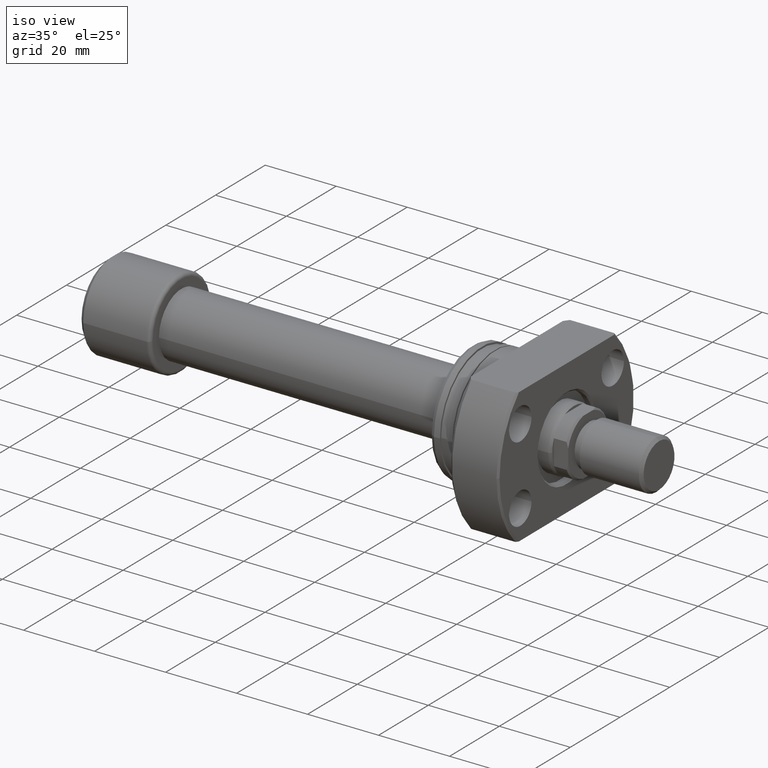
[diagram: clean part render]
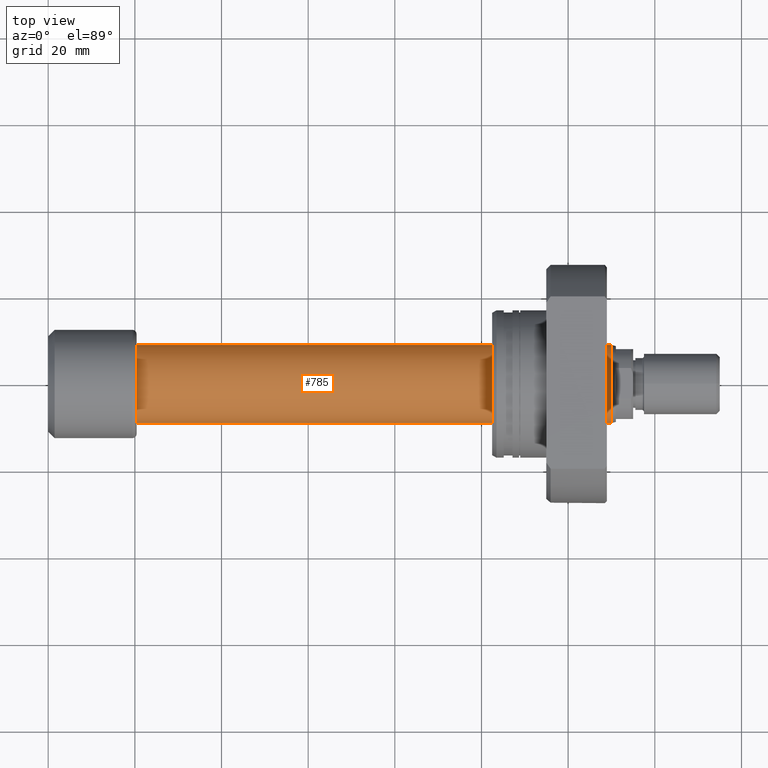
[diagram: tour spotlight — one face highlighted and labeled with its STEP entity id]
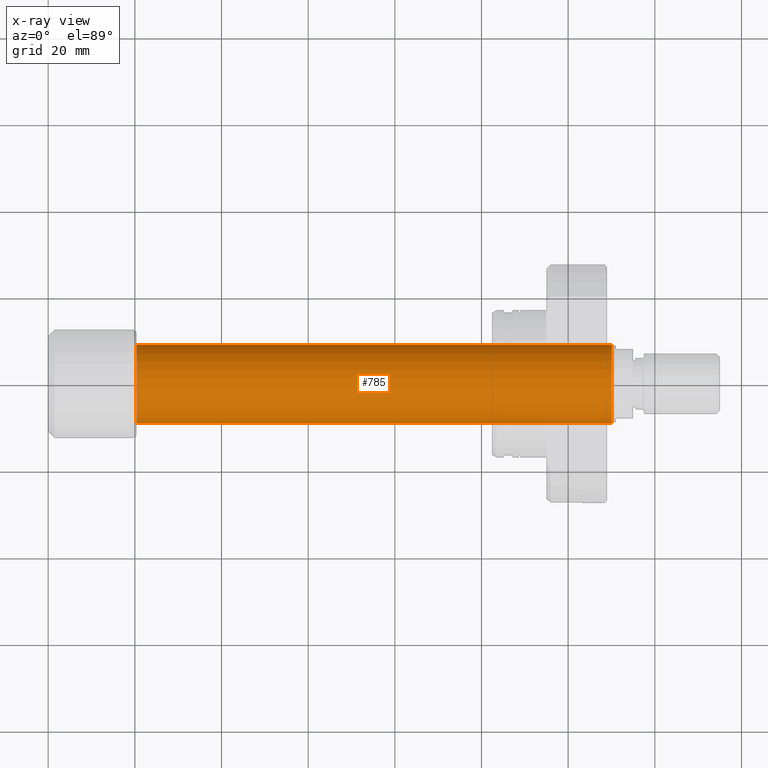
[diagram: x-ray of the same camera — body ghosted, this tour face saturated]
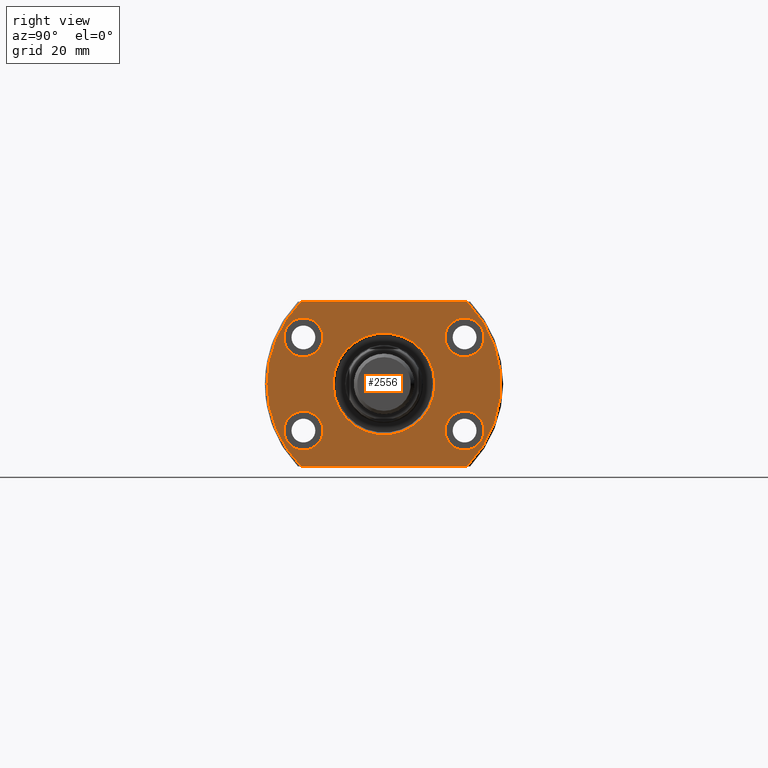
[diagram: tour spotlight — one face highlighted and labeled with its STEP entity id]
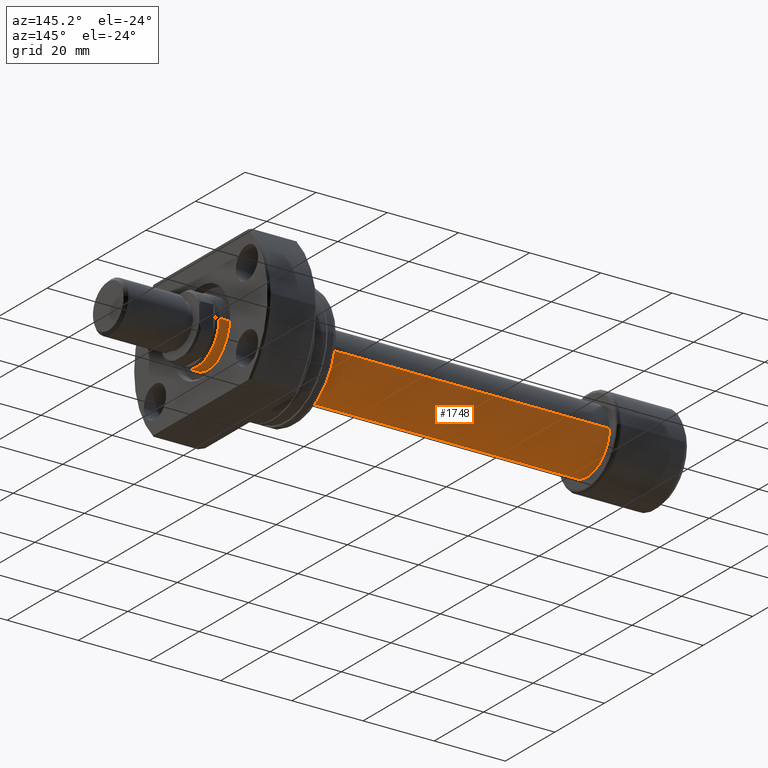
[diagram: tour spotlight — one face highlighted and labeled with its STEP entity id]
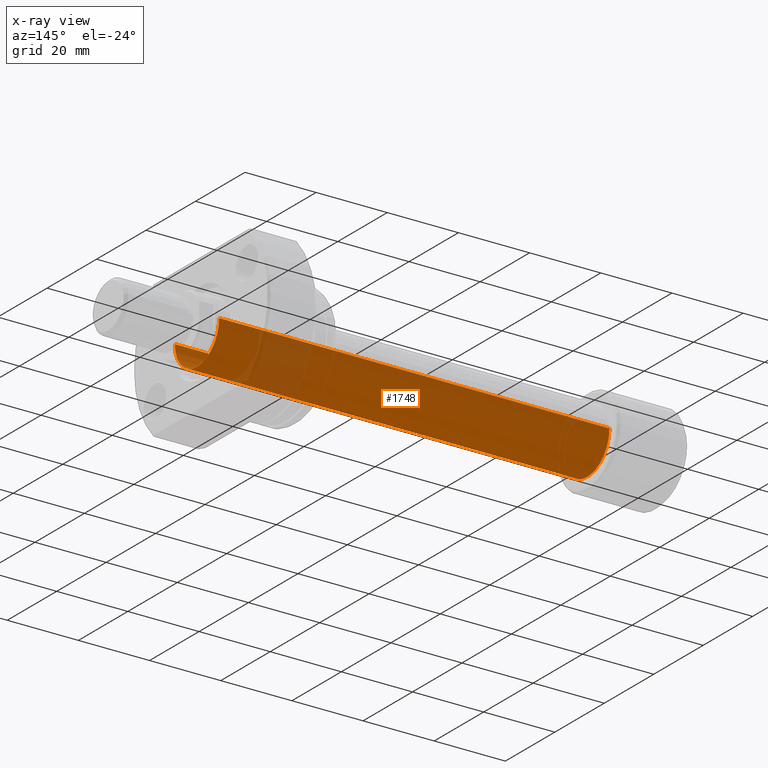
[diagram: x-ray of the same camera — body ghosted, this tour face saturated]
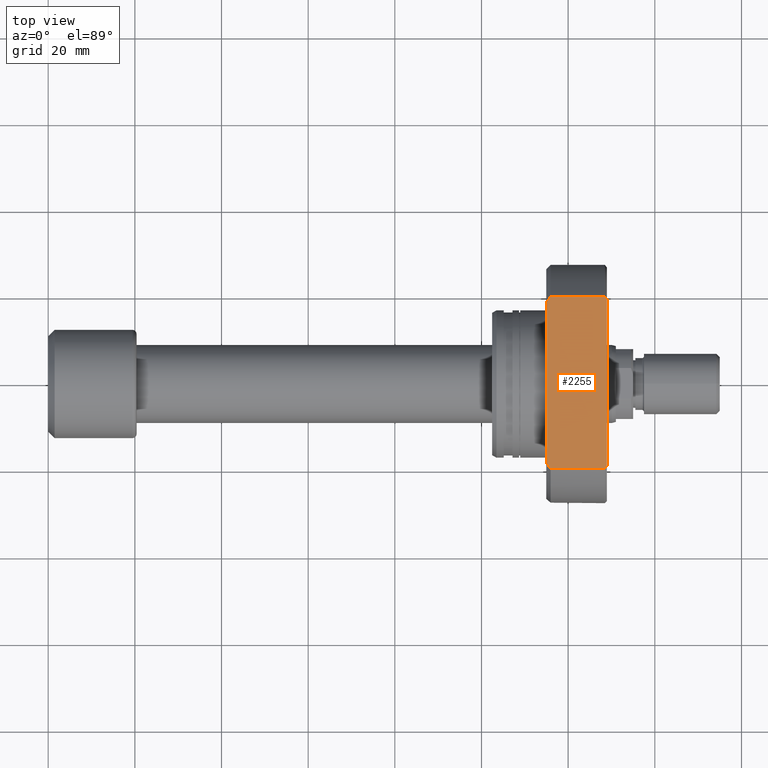
[diagram: tour spotlight — one face highlighted and labeled with its STEP entity id]
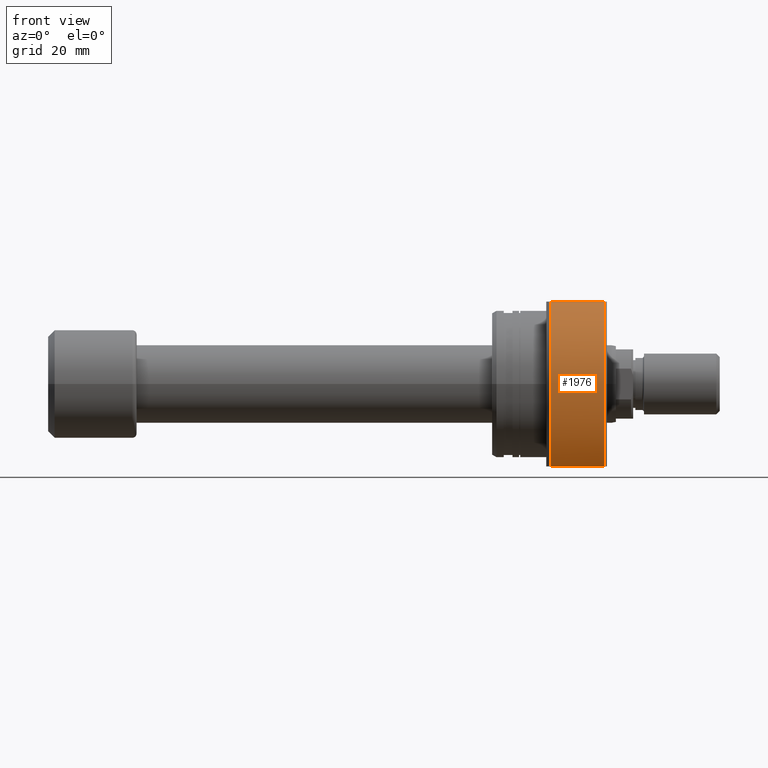
[diagram: tour spotlight — one face highlighted and labeled with its STEP entity id]
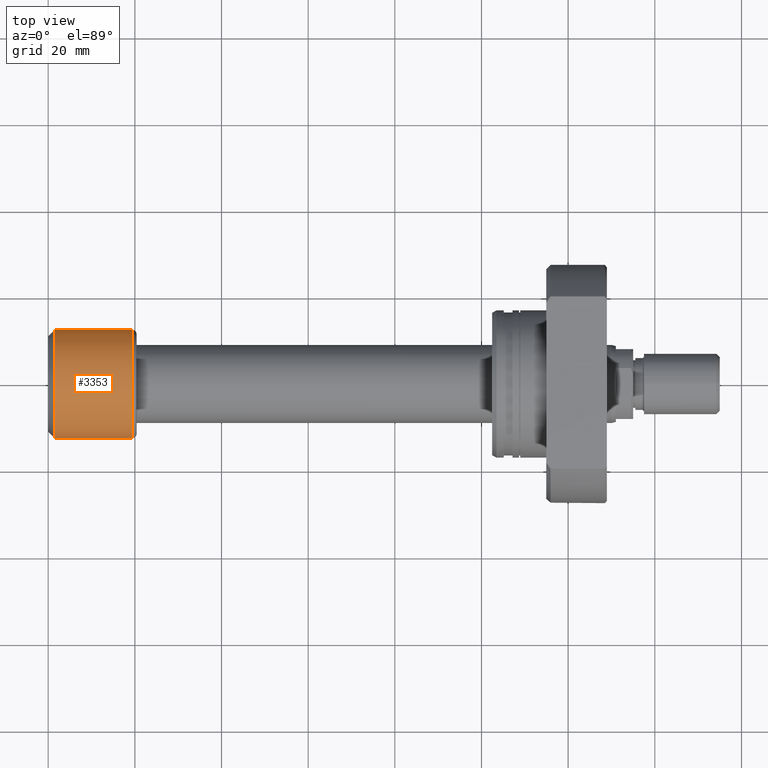
[diagram: tour spotlight — one face highlighted and labeled with its STEP entity id]
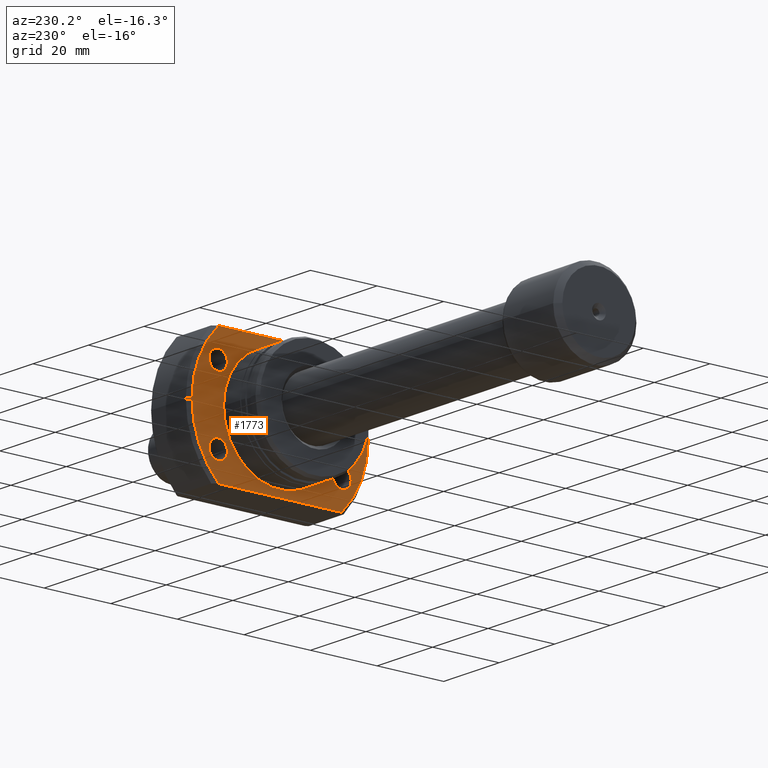
[diagram: tour spotlight — one face highlighted and labeled with its STEP entity id]
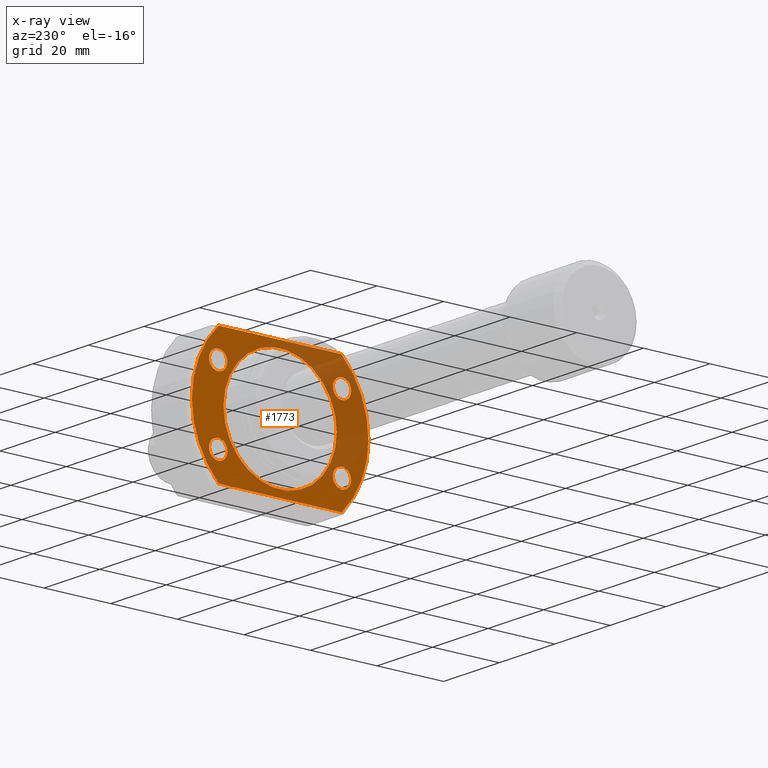
[diagram: x-ray of the same camera — body ghosted, this tour face saturated]
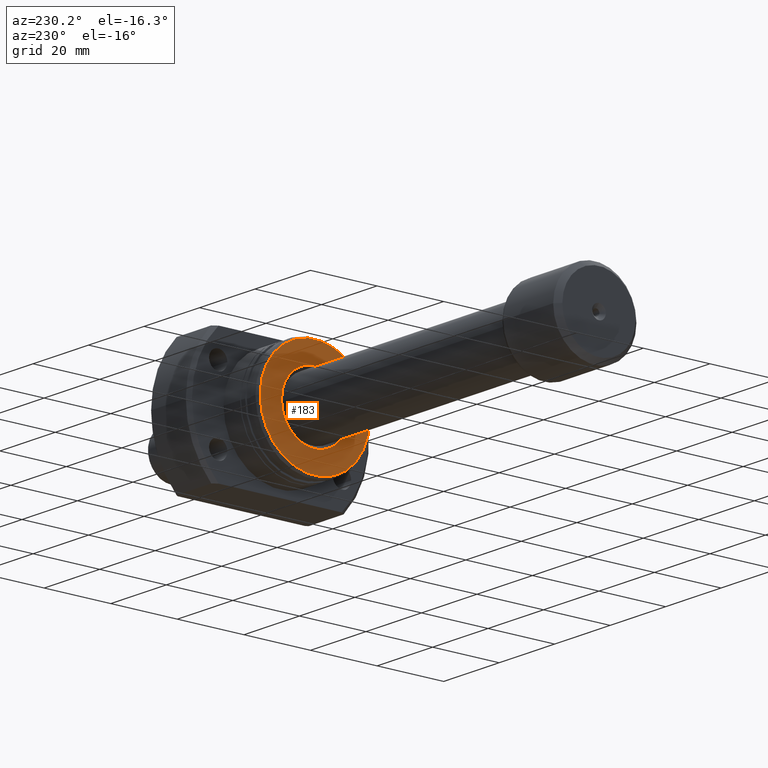
[diagram: tour spotlight — one face highlighted and labeled with its STEP entity id]
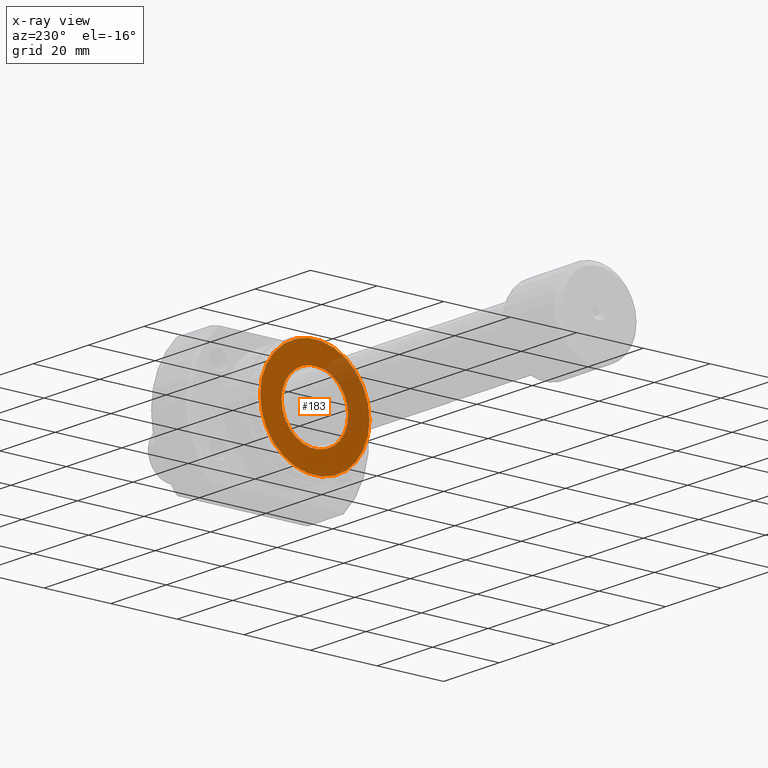
[diagram: x-ray of the same camera — body ghosted, this tour face saturated]
A machine part: a face-by-face anatomy tour. The part has 117 B-rep faces; the first image is the clean iso view, then the 8 largest visible faces are spotlighted one at a time (largest first), each with its STEP entity span.

Face 1 — top view, entity #785. An x-ray twin of the same camera follows (body ghosted, this face saturated) — the face is partly hidden behind the body. In plain terms, the highlighted cylindrical surface (partial cylindrical patch) has radius 9 mm, axis along (-1, -0, -0).
Definition (entity closure, byte-faithful):
#20 = DIRECTION ( 'NONE',  ( -1.000000000000000000, -1.069542322069065801E-17, -0.000000000000000000 ) ) ;
#26 = VERTEX_POINT ( 'NONE', #181 ) ;
#181 = CARTESIAN_POINT ( 'NONE',  ( 130.0667575123237611, 9.000000000000195399, 1.102182119232641774E-15 ) ) ;
#251 = EDGE_CURVE ( 'NONE', #26, #2731, #1156, .T. ) ;
#333 = CIRCLE ( 'NONE', #1998, 9.000000000000000000 ) ;
#438 = EDGE_CURVE ( 'NONE', #3619, #2731, #333, .T. ) ;
#513 = VECTOR ( 'NONE', #584, 1000.000000000000000 ) ;
#579 = CARTESIAN_POINT ( 'NONE',  ( 0.000000000000000000, 0.000000000000000000, 0.000000000000000000 ) ) ;
#584 = DIRECTION ( 'NONE',  ( -1.000000000000000000, -1.069542322069065801E-17, -0.000000000000000000 ) ) ;
#596 = CARTESIAN_POINT ( 'NONE',  ( 130.0667575123237611, -9.000000000000193623, 0.000000000000000000 ) ) ;
#623 = VECTOR ( 'NONE', #20, 1000.000000000000000 ) ;
#744 = AXIS2_PLACEMENT_3D ( 'NONE', #2143, #796, #766 ) ;
#766 = DIRECTION ( 'NONE',  ( 0.000000000000000000, -1.000000000000000000, 0.000000000000000000 ) ) ;
#785 = ADVANCED_FACE ( 'NONE', ( #1207 ), #2349, .T. ) ;
#788 = VERTEX_POINT ( 'NONE', #596 ) ;
#796 = DIRECTION ( 'NONE',  ( -1.000000000000000000, -1.069542322069065801E-17, -0.000000000000000000 ) ) ;
#1156 = LINE ( 'NONE', #1194, #513 ) ;
#1194 = CARTESIAN_POINT ( 'NONE',  ( -9.625880898621698056E-17, 9.000000000000097700, 1.102182119232629941E-15 ) ) ;
#1207 = FACE_OUTER_BOUND ( 'NONE', #3373, .T. ) ;
#1264 = CARTESIAN_POINT ( 'NONE',  ( 20.39999999999999503, 9.000000000000000000, 1.102182119232623630E-15 ) ) ;
#1286 = AXIS2_PLACEMENT_3D ( 'NONE', #579, #1432, #2292 ) ;
#1431 = ORIENTED_EDGE ( 'NONE', *, *, #438, .F. ) ;
#1432 = DIRECTION ( 'NONE',  ( -1.000000000000000000, -1.069542322069065801E-17, -0.000000000000000000 ) ) ;
#1643 = ORIENTED_EDGE ( 'NONE', *, *, #1729, .F. ) ;
#1729 = EDGE_CURVE ( 'NONE', #788, #3619, #2357, .T. ) ;
#1873 = CARTESIAN_POINT ( 'NONE',  ( 20.39999999999999503, 2.181866337020893623E-16, 0.000000000000000000 ) ) ;
#1998 = AXIS2_PLACEMENT_3D ( 'NONE', #1873, #2684, #3013 ) ;
#2143 = CARTESIAN_POINT ( 'NONE',  ( 130.0667575123237611, 1.391119018537248741E-15, 0.000000000000000000 ) ) ;
#2165 = CARTESIAN_POINT ( 'NONE',  ( 20.39999999999999503, -9.000000000000000000, 0.000000000000000000 ) ) ;
#2189 = ORIENTED_EDGE ( 'NONE', *, *, #3396, .T. ) ;
#2292 = DIRECTION ( 'NONE',  ( 1.069542322069065955E-17, -1.000000000000000000, 0.000000000000000000 ) ) ;
#2349 = CYLINDRICAL_SURFACE ( 'NONE', #1286, 9.000000000000097700 ) ;
#2357 = LINE ( 'NONE', #2911, #623 ) ;
#2684 = DIRECTION ( 'NONE',  ( -1.000000000000000000, -1.069542322069065801E-17, -0.000000000000000000 ) ) ;
#2731 = VERTEX_POINT ( 'NONE', #1264 ) ;
#2911 = CARTESIAN_POINT ( 'NONE',  ( 9.625880898621698056E-17, -9.000000000000097700, 0.000000000000000000 ) ) ;
#3013 = DIRECTION ( 'NONE',  ( 0.000000000000000000, -1.000000000000000000, 0.000000000000000000 ) ) ;
#3182 = ORIENTED_EDGE ( 'NONE', *, *, #251, .T. ) ;
#3370 = CIRCLE ( 'NONE', #744, 9.000000000000195399 ) ;
#3373 = EDGE_LOOP ( 'NONE', ( #2189, #3182, #1431, #1643 ) ) ;
#3396 = EDGE_CURVE ( 'NONE', #788, #26, #3370, .T. ) ;
#3619 = VERTEX_POINT ( 'NONE', #2165 ) ;

Face 2 — right view, entity #2556. In plain terms, the highlighted planar face has unit normal (-1, -0, 0).
Definition (entity closure, byte-faithful):
#27 = AXIS2_PLACEMENT_3D ( 'NONE', #2657, #2863, #1995 ) ;
#31 = AXIS2_PLACEMENT_3D ( 'NONE', #1105, #219, #1408 ) ;
#39 = CIRCLE ( 'NONE', #3143, 4.500000000000000888 ) ;
#92 = CARTESIAN_POINT ( 'NONE',  ( 26.50000000000000355, 19.18332609325086580, -19.00000000000001066 ) ) ;
#107 = CARTESIAN_POINT ( 'NONE',  ( 26.49999999999946354, -18.60000000000076881, -10.75000000000000000 ) ) ;
#119 = EDGE_CURVE ( 'NONE', #1030, #3188, #1407, .T. ) ;
#150 = EDGE_LOOP ( 'NONE', ( #2252, #3341 ) ) ;
#154 = CARTESIAN_POINT ( 'NONE',  ( 26.50000000000000355, -11.75000000000071054, 1.438959988998140752E-15 ) ) ;
#164 = VECTOR ( 'NONE', #2263, 1000.000000000000000 ) ;
#179 = DIRECTION ( 'NONE',  ( 0.000000000000000000, 1.000000000000000000, 0.000000000000000000 ) ) ;
#219 = DIRECTION ( 'NONE',  ( 1.000000000000000000, -2.883293662278287419E-14, -3.155443620884046521E-30 ) ) ;
#227 = ORIENTED_EDGE ( 'NONE', *, *, #2140, .F. ) ;
#234 = CARTESIAN_POINT ( 'NONE',  ( 26.50000000000000355, 2.449293598294708386E-16, 0.000000000000000000 ) ) ;
#357 = EDGE_LOOP ( 'NONE', ( #965, #1953 ) ) ;
#419 = ORIENTED_EDGE ( 'NONE', *, *, #1961, .T. ) ;
#420 = CARTESIAN_POINT ( 'NONE',  ( 26.50000000000000355, 2.449293598294708386E-16, 0.000000000000000000 ) ) ;
#446 = VECTOR ( 'NONE', #800, 1000.000000000000000 ) ;
#495 = CARTESIAN_POINT ( 'NONE',  ( 26.49999999999959499, -14.10000000000076881, 10.75000000000000000 ) ) ;
#518 = DIRECTION ( 'NONE',  ( 1.000000000000000000, -2.883293662278287419E-14, -3.155443620884046521E-30 ) ) ;
#526 = ORIENTED_EDGE ( 'NONE', *, *, #2813, .T. ) ;
#555 = DIRECTION ( 'NONE',  ( 2.852656382717415620E-14, 1.000000000000000000, 0.000000000000000000 ) ) ;
#576 = VERTEX_POINT ( 'NONE', #1671 ) ;
#641 = FACE_BOUND ( 'NONE', #150, .T. ) ;
#684 = DIRECTION ( 'NONE',  ( -1.000000000000000000, -9.242617352055502386E-18, 0.000000000000000000 ) ) ;
#729 = CARTESIAN_POINT ( 'NONE',  ( 26.50000000000000355, -19.18332609325086224, 19.00000000000000711 ) ) ;
#730 = EDGE_CURVE ( 'NONE', #1334, #2320, #1889, .T. ) ;
#780 = DIRECTION ( 'NONE',  ( 2.852656382717415620E-14, 1.000000000000000000, 0.000000000000000000 ) ) ;
#800 = DIRECTION ( 'NONE',  ( -0.000000000000000000, 1.000000000000000000, 0.000000000000000000 ) ) ;
#803 = CIRCLE ( 'NONE', #3658, 4.500000000000000888 ) ;
#807 = CARTESIAN_POINT ( 'NONE',  ( 26.50000000000000355, -19.18332609325086580, -19.00000000000001066 ) ) ;
#859 = EDGE_CURVE ( 'NONE', #576, #1982, #2910, .T. ) ;
#877 = CARTESIAN_POINT ( 'NONE',  ( 26.50000000000000355, -27.00000000000000000, 0.000000000000000000 ) ) ;
#953 = CARTESIAN_POINT ( 'NONE',  ( 26.49999999999933564, -23.10000000000076881, 10.75000000000000000 ) ) ;
#965 = ORIENTED_EDGE ( 'NONE', *, *, #119, .F. ) ;
#1030 = VERTEX_POINT ( 'NONE', #2515 ) ;
#1031 = CIRCLE ( 'NONE', #2107, 4.500000000000000888 ) ;
#1037 = CIRCLE ( 'NONE', #27, 4.500000000000000888 ) ;
#1050 = AXIS2_PLACEMENT_3D ( 'NONE', #2312, #1753, #1190 ) ;
#1059 = EDGE_CURVE ( 'NONE', #2320, #1334, #39, .T. ) ;
#1105 = CARTESIAN_POINT ( 'NONE',  ( 26.50000000000054001, 18.59999999999923403, -10.75000000000000000 ) ) ;
#1113 = EDGE_CURVE ( 'NONE', #1982, #2444, #3688, .T. ) ;
#1126 = CARTESIAN_POINT ( 'NONE',  ( 26.50000000000000355, -27.00000000000000000, -19.00000000000001066 ) ) ;
#1129 = CARTESIAN_POINT ( 'NONE',  ( 26.50000000000066791, 23.09999999999923403, 10.75000000000000000 ) ) ;
#1132 = FACE_BOUND ( 'NONE', #1390, .T. ) ;
#1136 = DIRECTION ( 'NONE',  ( 2.852656382717415620E-14, 1.000000000000000000, 0.000000000000000000 ) ) ;
#1184 = DIRECTION ( 'NONE',  ( 0.000000000000000000, -1.000000000000000000, 0.000000000000000000 ) ) ;
#1185 = CARTESIAN_POINT ( 'NONE',  ( 26.50000000000000355, 19.18332609325086935, 19.00000000000000711 ) ) ;
#1190 = DIRECTION ( 'NONE',  ( 2.852656382717415620E-14, 1.000000000000000000, 0.000000000000000000 ) ) ;
#1202 = EDGE_CURVE ( 'NONE', #2383, #3002, #1892, .T. ) ;
#1334 = VERTEX_POINT ( 'NONE', #495 ) ;
#1390 = EDGE_LOOP ( 'NONE', ( #2483, #227 ) ) ;
#1407 = CIRCLE ( 'NONE', #31, 4.500000000000000888 ) ;
#1408 = DIRECTION ( 'NONE',  ( 2.852656382717415620E-14, 1.000000000000000000, 0.000000000000000000 ) ) ;
#1452 = CIRCLE ( 'NONE', #1637, 27.00000000000000000 ) ;
#1503 = EDGE_CURVE ( 'NONE', #3188, #1030, #2981, .T. ) ;
#1549 = DIRECTION ( 'NONE',  ( 0.000000000000000000, 1.000000000000000000, 0.000000000000000000 ) ) ;
#1585 = DIRECTION ( 'NONE',  ( 1.000000000000000000, -2.886466111666351885E-14, 0.000000000000000000 ) ) ;
#1622 = DIRECTION ( 'NONE',  ( 1.000000000000000000, 9.242617352055502386E-18, -0.000000000000000000 ) ) ;
#1637 = AXIS2_PLACEMENT_3D ( 'NONE', #234, #2795, #1702 ) ;
#1671 = CARTESIAN_POINT ( 'NONE',  ( 26.50000000000000355, -27.00000000000000355, 0.000000000000000000 ) ) ;
#1702 = DIRECTION ( 'NONE',  ( 0.000000000000000000, 1.000000000000000000, 0.000000000000000000 ) ) ;
#1746 = VERTEX_POINT ( 'NONE', #3239 ) ;
#1753 = DIRECTION ( 'NONE',  ( 1.000000000000000000, -2.883293662278287419E-14, -3.155443620884046521E-30 ) ) ;
#1777 = CARTESIAN_POINT ( 'NONE',  ( 26.50000000000000355, 19.88089535207168623, 19.00000000000001066 ) ) ;
#1853 = EDGE_CURVE ( 'NONE', #2444, #2404, #3488, .T. ) ;
#1859 = DIRECTION ( 'NONE',  ( 1.000000000000000000, 9.242617352055502386E-18, -0.000000000000000000 ) ) ;
#1889 = CIRCLE ( 'NONE', #1050, 4.500000000000000888 ) ;
#1892 = CIRCLE ( 'NONE', #3621, 11.74999999999932498 ) ;
#1953 = ORIENTED_EDGE ( 'NONE', *, *, #1503, .F. ) ;
#1961 = EDGE_CURVE ( 'NONE', #2913, #576, #1452, .T. ) ;
#1982 = VERTEX_POINT ( 'NONE', #807 ) ;
#1984 = DIRECTION ( 'NONE',  ( 1.000000000000000000, -2.883293662278287419E-14, -3.155443620884046521E-30 ) ) ;
#1995 = DIRECTION ( 'NONE',  ( 2.852656382717415620E-14, 1.000000000000000000, 0.000000000000000000 ) ) ;
#2031 = FACE_BOUND ( 'NONE', #357, .T. ) ;
#2088 = CARTESIAN_POINT ( 'NONE',  ( 26.50000000000041211, 14.09999999999923403, 10.75000000000000000 ) ) ;
#2107 = AXIS2_PLACEMENT_3D ( 'NONE', #3137, #2570, #555 ) ;
#2134 = CARTESIAN_POINT ( 'NONE',  ( 26.50000000000000355, 2.449293598294708386E-16, 0.000000000000000000 ) ) ;
#2140 = EDGE_CURVE ( 'NONE', #1746, #3270, #1037, .T. ) ;
#2252 = ORIENTED_EDGE ( 'NONE', *, *, #730, .F. ) ;
#2257 = FACE_BOUND ( 'NONE', #2513, .T. ) ;
#2263 = DIRECTION ( 'NONE',  ( -9.242617352055502386E-18, 1.000000000000000000, -0.000000000000000000 ) ) ;
#2270 = PLANE ( 'NONE',  #2475 ) ;
#2312 = CARTESIAN_POINT ( 'NONE',  ( 26.49999999999946354, -18.60000000000076881, 10.75000000000000000 ) ) ;
#2320 = VERTEX_POINT ( 'NONE', #953 ) ;
#2383 = VERTEX_POINT ( 'NONE', #154 ) ;
#2404 = VERTEX_POINT ( 'NONE', #1185 ) ;
#2444 = VERTEX_POINT ( 'NONE', #92 ) ;
#2475 = AXIS2_PLACEMENT_3D ( 'NONE', #877, #2825, #3159 ) ;
#2483 = ORIENTED_EDGE ( 'NONE', *, *, #3670, .F. ) ;
#2488 = AXIS2_PLACEMENT_3D ( 'NONE', #420, #1622, #1549 ) ;
#2500 = CARTESIAN_POINT ( 'NONE',  ( 26.50000000000054001, 18.59999999999923403, 10.75000000000000000 ) ) ;
#2502 = ORIENTED_EDGE ( 'NONE', *, *, #1853, .T. ) ;
#2513 = EDGE_LOOP ( 'NONE', ( #526, #3337 ) ) ;
#2515 = CARTESIAN_POINT ( 'NONE',  ( 26.50000000000066791, 23.09999999999923403, -10.75000000000000000 ) ) ;
#2532 = CARTESIAN_POINT ( 'NONE',  ( 26.49999999999946354, -18.60000000000076881, 10.75000000000000000 ) ) ;
#2550 = EDGE_LOOP ( 'NONE', ( #3129, #2675 ) ) ;
#2556 = ADVANCED_FACE ( 'NONE', ( #2257, #3402, #641, #1132, #2031, #3120 ), #2270, .F. ) ;
#2570 = DIRECTION ( 'NONE',  ( 1.000000000000000000, -2.886466111666351885E-14, 0.000000000000000000 ) ) ;
#2657 = CARTESIAN_POINT ( 'NONE',  ( 26.49999999999946354, -18.60000000000076881, -10.75000000000000000 ) ) ;
#2675 = ORIENTED_EDGE ( 'NONE', *, *, #3330, .F. ) ;
#2689 = CARTESIAN_POINT ( 'NONE',  ( 26.50000000000000355, -7.069515144664183387E-13, 0.000000000000000000 ) ) ;
#2758 = VERTEX_POINT ( 'NONE', #2088 ) ;
#2767 = CARTESIAN_POINT ( 'NONE',  ( 26.50000000000000355, -7.069515144664183387E-13, 0.000000000000000000 ) ) ;
#2773 = CIRCLE ( 'NONE', #3547, 11.74999999999932498 ) ;
#2791 = DIRECTION ( 'NONE',  ( 0.000000000000000000, -1.000000000000000000, 0.000000000000000000 ) ) ;
#2795 = DIRECTION ( 'NONE',  ( 1.000000000000000000, 9.242617352055502386E-18, -0.000000000000000000 ) ) ;
#2809 = EDGE_CURVE ( 'NONE', #2913, #2404, #3500, .T. ) ;
#2813 = EDGE_CURVE ( 'NONE', #3002, #2383, #2773, .T. ) ;
#2825 = DIRECTION ( 'NONE',  ( -1.000000000000000000, -9.242617352055502386E-18, 0.000000000000000000 ) ) ;
#2839 = CIRCLE ( 'NONE', #3191, 4.500000000000000888 ) ;
#2863 = DIRECTION ( 'NONE',  ( 1.000000000000000000, -2.883293662278287419E-14, -3.155443620884046521E-30 ) ) ;
#2868 = ORIENTED_EDGE ( 'NONE', *, *, #859, .T. ) ;
#2910 = CIRCLE ( 'NONE', #2488, 27.00000000000000000 ) ;
#2913 = VERTEX_POINT ( 'NONE', #729 ) ;
#2974 = CARTESIAN_POINT ( 'NONE',  ( 26.50000000000041211, 14.09999999999923403, -10.75000000000000000 ) ) ;
#2981 = CIRCLE ( 'NONE', #3629, 4.500000000000000888 ) ;
#2994 = EDGE_CURVE ( 'NONE', #3025, #2758, #1031, .T. ) ;
#3002 = VERTEX_POINT ( 'NONE', #3172 ) ;
#3015 = DIRECTION ( 'NONE',  ( 2.852656382717415620E-14, 1.000000000000000000, 0.000000000000000000 ) ) ;
#3025 = VERTEX_POINT ( 'NONE', #1129 ) ;
#3099 = EDGE_LOOP ( 'NONE', ( #3208, #419, #2868, #3302, #2502 ) ) ;
#3120 = FACE_OUTER_BOUND ( 'NONE', #3099, .T. ) ;
#3126 = AXIS2_PLACEMENT_3D ( 'NONE', #2134, #1859, #179 ) ;
#3129 = ORIENTED_EDGE ( 'NONE', *, *, #2994, .F. ) ;
#3131 = DIRECTION ( 'NONE',  ( 2.852656382717415620E-14, 1.000000000000000000, 0.000000000000000000 ) ) ;
#3137 = CARTESIAN_POINT ( 'NONE',  ( 26.50000000000054001, 18.59999999999923403, 10.75000000000000000 ) ) ;
#3143 = AXIS2_PLACEMENT_3D ( 'NONE', #2532, #1984, #3131 ) ;
#3159 = DIRECTION ( 'NONE',  ( 9.242617352055502386E-18, -1.000000000000000000, 0.000000000000000000 ) ) ;
#3172 = CARTESIAN_POINT ( 'NONE',  ( 26.50000000000000355, 11.74999999999861622, 0.000000000000000000 ) ) ;
#3188 = VERTEX_POINT ( 'NONE', #2974 ) ;
#3191 = AXIS2_PLACEMENT_3D ( 'NONE', #107, #3524, #3015 ) ;
#3208 = ORIENTED_EDGE ( 'NONE', *, *, #2809, .F. ) ;
#3239 = CARTESIAN_POINT ( 'NONE',  ( 26.49999999999933564, -23.10000000000076881, -10.75000000000000000 ) ) ;
#3270 = VERTEX_POINT ( 'NONE', #3530 ) ;
#3302 = ORIENTED_EDGE ( 'NONE', *, *, #1113, .T. ) ;
#3330 = EDGE_CURVE ( 'NONE', #2758, #3025, #803, .T. ) ;
#3337 = ORIENTED_EDGE ( 'NONE', *, *, #1202, .T. ) ;
#3341 = ORIENTED_EDGE ( 'NONE', *, *, #1059, .F. ) ;
#3345 = DIRECTION ( 'NONE',  ( -1.000000000000000000, -9.242617352055502386E-18, 0.000000000000000000 ) ) ;
#3369 = CARTESIAN_POINT ( 'NONE',  ( 26.50000000000054001, 18.59999999999923403, -10.75000000000000000 ) ) ;
#3402 = FACE_BOUND ( 'NONE', #2550, .T. ) ;
#3488 = CIRCLE ( 'NONE', #3126, 27.00000000000000000 ) ;
#3500 = LINE ( 'NONE', #1777, #446 ) ;
#3524 = DIRECTION ( 'NONE',  ( 1.000000000000000000, -2.883293662278287419E-14, -3.155443620884046521E-30 ) ) ;
#3530 = CARTESIAN_POINT ( 'NONE',  ( 26.49999999999959499, -14.10000000000076881, -10.75000000000000000 ) ) ;
#3547 = AXIS2_PLACEMENT_3D ( 'NONE', #2767, #3345, #2791 ) ;
#3621 = AXIS2_PLACEMENT_3D ( 'NONE', #2689, #684, #1184 ) ;
#3629 = AXIS2_PLACEMENT_3D ( 'NONE', #3369, #518, #1136 ) ;
#3658 = AXIS2_PLACEMENT_3D ( 'NONE', #2500, #1585, #780 ) ;
#3670 = EDGE_CURVE ( 'NONE', #3270, #1746, #2839, .T. ) ;
#3688 = LINE ( 'NONE', #1126, #164 ) ;

Face 3 — auxiliary view, entity #1748. An x-ray twin of the same camera follows (body ghosted, this face saturated) — the face is partly hidden behind the body. In plain terms, the highlighted cylindrical surface (partial cylindrical patch) has radius 9 mm, axis along (-1, -0, -0).
Definition (entity closure, byte-faithful):
#20 = DIRECTION ( 'NONE',  ( -1.000000000000000000, -1.069542322069065801E-17, -0.000000000000000000 ) ) ;
#26 = VERTEX_POINT ( 'NONE', #181 ) ;
#181 = CARTESIAN_POINT ( 'NONE',  ( 130.0667575123237611, 9.000000000000195399, 1.102182119232641774E-15 ) ) ;
#251 = EDGE_CURVE ( 'NONE', #26, #2731, #1156, .T. ) ;
#325 = CYLINDRICAL_SURFACE ( 'NONE', #2346, 9.000000000000097700 ) ;
#513 = VECTOR ( 'NONE', #584, 1000.000000000000000 ) ;
#584 = DIRECTION ( 'NONE',  ( -1.000000000000000000, -1.069542322069065801E-17, -0.000000000000000000 ) ) ;
#590 = CARTESIAN_POINT ( 'NONE',  ( 130.0667575123237611, 1.391119018537248741E-15, 0.000000000000000000 ) ) ;
#596 = CARTESIAN_POINT ( 'NONE',  ( 130.0667575123237611, -9.000000000000193623, 0.000000000000000000 ) ) ;
#623 = VECTOR ( 'NONE', #20, 1000.000000000000000 ) ;
#646 = FACE_OUTER_BOUND ( 'NONE', #1804, .T. ) ;
#788 = VERTEX_POINT ( 'NONE', #596 ) ;
#898 = DIRECTION ( 'NONE',  ( -1.000000000000000000, -1.069542322069065801E-17, -0.000000000000000000 ) ) ;
#957 = CARTESIAN_POINT ( 'NONE',  ( 0.000000000000000000, 0.000000000000000000, 0.000000000000000000 ) ) ;
#1068 = EDGE_CURVE ( 'NONE', #26, #788, #3088, .T. ) ;
#1112 = DIRECTION ( 'NONE',  ( -1.000000000000000000, -1.069542322069065801E-17, -0.000000000000000000 ) ) ;
#1156 = LINE ( 'NONE', #1194, #513 ) ;
#1194 = CARTESIAN_POINT ( 'NONE',  ( -9.625880898621698056E-17, 9.000000000000097700, 1.102182119232629941E-15 ) ) ;
#1264 = CARTESIAN_POINT ( 'NONE',  ( 20.39999999999999503, 9.000000000000000000, 1.102182119232623630E-15 ) ) ;
#1346 = CARTESIAN_POINT ( 'NONE',  ( 20.39999999999999503, 2.181866337020893623E-16, 0.000000000000000000 ) ) ;
#1364 = DIRECTION ( 'NONE',  ( -1.000000000000000000, -1.069542322069065801E-17, -0.000000000000000000 ) ) ;
#1729 = EDGE_CURVE ( 'NONE', #788, #3619, #2357, .T. ) ;
#1748 = ADVANCED_FACE ( 'NONE', ( #646 ), #325, .T. ) ;
#1804 = EDGE_LOOP ( 'NONE', ( #3632, #2338, #2398, #3649 ) ) ;
#1922 = DIRECTION ( 'NONE',  ( 0.000000000000000000, -1.000000000000000000, 0.000000000000000000 ) ) ;
#2078 = DIRECTION ( 'NONE',  ( 1.069542322069065955E-17, -1.000000000000000000, 0.000000000000000000 ) ) ;
#2165 = CARTESIAN_POINT ( 'NONE',  ( 20.39999999999999503, -9.000000000000000000, 0.000000000000000000 ) ) ;
#2338 = ORIENTED_EDGE ( 'NONE', *, *, #1068, .T. ) ;
#2346 = AXIS2_PLACEMENT_3D ( 'NONE', #957, #898, #2078 ) ;
#2357 = LINE ( 'NONE', #2911, #623 ) ;
#2398 = ORIENTED_EDGE ( 'NONE', *, *, #1729, .T. ) ;
#2731 = VERTEX_POINT ( 'NONE', #1264 ) ;
#2856 = EDGE_CURVE ( 'NONE', #2731, #3619, #2890, .T. ) ;
#2890 = CIRCLE ( 'NONE', #3009, 9.000000000000000000 ) ;
#2911 = CARTESIAN_POINT ( 'NONE',  ( 9.625880898621698056E-17, -9.000000000000097700, 0.000000000000000000 ) ) ;
#3009 = AXIS2_PLACEMENT_3D ( 'NONE', #1346, #1364, #1922 ) ;
#3088 = CIRCLE ( 'NONE', #3564, 9.000000000000195399 ) ;
#3395 = DIRECTION ( 'NONE',  ( 0.000000000000000000, -1.000000000000000000, 0.000000000000000000 ) ) ;
#3564 = AXIS2_PLACEMENT_3D ( 'NONE', #590, #1112, #3395 ) ;
#3619 = VERTEX_POINT ( 'NONE', #2165 ) ;
#3632 = ORIENTED_EDGE ( 'NONE', *, *, #251, .F. ) ;
#3649 = ORIENTED_EDGE ( 'NONE', *, *, #2856, .F. ) ;

Face 4 — top view, entity #2255. In plain terms, the highlighted planar face has unit normal (0, 0, 1).
Definition (entity closure, byte-faithful):
#106 = CARTESIAN_POINT ( 'NONE',  ( 26.50000000000000355, 19.18332609325086935, 19.00000000000000711 ) ) ;
#127 = CARTESIAN_POINT ( 'NONE',  ( 13.16251021117672160, -19.41406682004138773, 19.00000000000001066 ) ) ;
#133 = DIRECTION ( 'NONE',  ( 1.000000000000000000, -2.886466111666351885E-14, -0.000000000000000000 ) ) ;
#146 = ORIENTED_EDGE ( 'NONE', *, *, #591, .T. ) ;
#152 = AXIS2_PLACEMENT_3D ( 'NONE', #3235, #2995, #2681 ) ;
#167 = CARTESIAN_POINT ( 'NONE',  ( 12.50000000000000355, -18.47295320191106072, 19.00000000000001066 ) ) ;
#192 = CARTESIAN_POINT ( 'NONE',  ( 26.00000000000007461, -19.88089535207091885, 19.00000000000001421 ) ) ;
#199 = B_SPLINE_CURVE_WITH_KNOTS ( 'NONE', 3,
 ( #667, #946, #1259, #2323 ),
 .UNSPECIFIED., .F., .F.,
 ( 4, 4 ),
 ( 0.03128279945209438972, 0.03301205973984312758 ),
 .UNSPECIFIED. ) ;
#239 = VERTEX_POINT ( 'NONE', #1436 ) ;
#383 = VECTOR ( 'NONE', #133, 1000.000000000000000 ) ;
#446 = VECTOR ( 'NONE', #800, 1000.000000000000000 ) ;
#535 = ORIENTED_EDGE ( 'NONE', *, *, #1670, .T. ) ;
#591 = EDGE_CURVE ( 'NONE', #239, #2913, #2386, .T. ) ;
#667 = CARTESIAN_POINT ( 'NONE',  ( 13.49999999999998757, 19.88089535207129188, 19.00000000000000355 ) ) ;
#678 = CARTESIAN_POINT ( 'NONE',  ( 26.33435831467464538, 19.41646217622441029, 19.00000000000001066 ) ) ;
#729 = CARTESIAN_POINT ( 'NONE',  ( 26.50000000000000355, -19.18332609325086224, 19.00000000000000711 ) ) ;
#800 = DIRECTION ( 'NONE',  ( -0.000000000000000000, 1.000000000000000000, 0.000000000000000000 ) ) ;
#816 = B_SPLINE_CURVE_WITH_KNOTS ( 'NONE', 3,
 ( #1543, #1201, #127, #2644 ),
 .UNSPECIFIED., .F., .F.,
 ( 4, 4 ),
 ( 0.07360185391654980314, 0.07534192973589427800 ),
 .UNSPECIFIED. ) ;
#850 = ORIENTED_EDGE ( 'NONE', *, *, #3467, .T. ) ;
#883 = DIRECTION ( 'NONE',  ( 9.242617352055502386E-18, -1.000000000000000000, 0.000000000000000000 ) ) ;
#899 = LINE ( 'NONE', #1741, #2653 ) ;
#946 = CARTESIAN_POINT ( 'NONE',  ( 13.16276636410033873, 19.41442114037127453, 19.00000000000001066 ) ) ;
#959 = ORIENTED_EDGE ( 'NONE', *, *, #1231, .T. ) ;
#1155 = EDGE_CURVE ( 'NONE', #2691, #1558, #199, .T. ) ;
#1185 = CARTESIAN_POINT ( 'NONE',  ( 26.50000000000000355, 19.18332609325086935, 19.00000000000000711 ) ) ;
#1201 = CARTESIAN_POINT ( 'NONE',  ( 12.82897297353833999, -18.94487470268462914, 19.00000000000001066 ) ) ;
#1231 = EDGE_CURVE ( 'NONE', #1389, #2989, #816, .T. ) ;
#1259 = CARTESIAN_POINT ( 'NONE',  ( 12.82923531929442262, 18.94525104546319128, 19.00000000000001066 ) ) ;
#1381 = CARTESIAN_POINT ( 'NONE',  ( 26.33429591812845061, -19.41654999763447620, 19.00000000000001066 ) ) ;
#1389 = VERTEX_POINT ( 'NONE', #167 ) ;
#1402 = CARTESIAN_POINT ( 'NONE',  ( 26.16760613831981885, -19.64905625618670726, 19.00000000000001066 ) ) ;
#1424 = ORIENTED_EDGE ( 'NONE', *, *, #3309, .F. ) ;
#1436 = CARTESIAN_POINT ( 'NONE',  ( 26.00000000000007461, -19.88089535207091885, 19.00000000000001421 ) ) ;
#1490 = VERTEX_POINT ( 'NONE', #2002 ) ;
#1543 = CARTESIAN_POINT ( 'NONE',  ( 12.50000000000000355, -18.47295320191106072, 19.00000000000001066 ) ) ;
#1558 = VERTEX_POINT ( 'NONE', #2866 ) ;
#1670 = EDGE_CURVE ( 'NONE', #2404, #1490, #2501, .T. ) ;
#1710 = ORIENTED_EDGE ( 'NONE', *, *, #2809, .T. ) ;
#1741 = CARTESIAN_POINT ( 'NONE',  ( 12.50000000000000355, -16.99999999999999645, 19.00000000000001066 ) ) ;
#1777 = CARTESIAN_POINT ( 'NONE',  ( 26.50000000000000355, 19.88089535207168623, 19.00000000000001066 ) ) ;
#1785 = CARTESIAN_POINT ( 'NONE',  ( 26.16766778152496187, 19.64897098899368899, 19.00000000000001066 ) ) ;
#1838 = CARTESIAN_POINT ( 'NONE',  ( 13.49999999999998757, 19.88089535207129188, 19.00000000000000355 ) ) ;
#1870 = PLANE ( 'NONE',  #152 ) ;
#2002 = CARTESIAN_POINT ( 'NONE',  ( 26.00000000000007461, 19.88089535207092950, 19.00000000000000355 ) ) ;
#2089 = FACE_OUTER_BOUND ( 'NONE', #2453, .T. ) ;
#2172 = VECTOR ( 'NONE', #3343, 1000.000000000000000 ) ;
#2197 = CARTESIAN_POINT ( 'NONE',  ( -2.151057110211240797E-13, 19.88089535207167913, 19.00000000000000355 ) ) ;
#2201 = CARTESIAN_POINT ( 'NONE',  ( 26.50000000000000355, -19.18332609325086224, 19.00000000000000711 ) ) ;
#2255 = ADVANCED_FACE ( 'NONE', ( #2089 ), #1870, .T. ) ;
#2323 = CARTESIAN_POINT ( 'NONE',  ( 12.50000000000000355, 18.47295320191106072, 19.00000000000001066 ) ) ;
#2328 = ORIENTED_EDGE ( 'NONE', *, *, #2709, .T. ) ;
#2386 = B_SPLINE_CURVE_WITH_KNOTS ( 'NONE', 3,
 ( #192, #1402, #1381, #2201 ),
 .UNSPECIFIED., .F., .F.,
 ( 4, 4 ),
 ( 0.03127512062948595295, 0.03213456893170307110 ),
 .UNSPECIFIED. ) ;
#2404 = VERTEX_POINT ( 'NONE', #1185 ) ;
#2453 = EDGE_LOOP ( 'NONE', ( #3171, #850, #959, #2328, #146, #1710, #535, #1424 ) ) ;
#2501 = B_SPLINE_CURVE_WITH_KNOTS ( 'NONE', 3,
 ( #106, #678, #1785, #3163 ),
 .UNSPECIFIED., .F., .F.,
 ( 4, 4 ),
 ( 0.07446973138748344545, 0.07533421896860403866 ),
 .UNSPECIFIED. ) ;
#2644 = CARTESIAN_POINT ( 'NONE',  ( 13.49999999999998757, -19.88089535207056002, 19.00000000000001421 ) ) ;
#2653 = VECTOR ( 'NONE', #883, 1000.000000000000000 ) ;
#2656 = LINE ( 'NONE', #2697, #383 ) ;
#2681 = DIRECTION ( 'NONE',  ( 1.000000000000000000, 0.000000000000000000, -0.000000000000000000 ) ) ;
#2691 = VERTEX_POINT ( 'NONE', #1838 ) ;
#2697 = CARTESIAN_POINT ( 'NONE',  ( -1.360023205165816762E-12, -19.88089535207016922, 19.00000000000001421 ) ) ;
#2709 = EDGE_CURVE ( 'NONE', #2989, #239, #2656, .T. ) ;
#2809 = EDGE_CURVE ( 'NONE', #2913, #2404, #3500, .T. ) ;
#2866 = CARTESIAN_POINT ( 'NONE',  ( 12.50000000000000355, 18.47295320191106072, 19.00000000000001066 ) ) ;
#2894 = CARTESIAN_POINT ( 'NONE',  ( 13.49999999999998757, -19.88089535207056002, 19.00000000000001421 ) ) ;
#2913 = VERTEX_POINT ( 'NONE', #729 ) ;
#2989 = VERTEX_POINT ( 'NONE', #2894 ) ;
#2995 = DIRECTION ( 'NONE',  ( 0.000000000000000000, 0.000000000000000000, 1.000000000000000000 ) ) ;
#3163 = CARTESIAN_POINT ( 'NONE',  ( 26.00000000000007461, 19.88089535207092950, 19.00000000000000355 ) ) ;
#3171 = ORIENTED_EDGE ( 'NONE', *, *, #1155, .T. ) ;
#3235 = CARTESIAN_POINT ( 'NONE',  ( -2.151057110211240797E-13, 19.88089535207168623, 19.00000000000001066 ) ) ;
#3309 = EDGE_CURVE ( 'NONE', #2691, #1490, #3325, .T. ) ;
#3325 = LINE ( 'NONE', #2197, #2172 ) ;
#3343 = DIRECTION ( 'NONE',  ( 1.000000000000000000, -2.886466111666351885E-14, -0.000000000000000000 ) ) ;
#3467 = EDGE_CURVE ( 'NONE', #1558, #1389, #899, .T. ) ;
#3500 = LINE ( 'NONE', #1777, #446 ) ;

Face 5 — front view, entity #1976. In plain terms, the highlighted cylindrical surface (partial cylindrical patch) has radius 27.5 mm, axis along (1, 0, 0).
Definition (entity closure, byte-faithful):
#56 = CARTESIAN_POINT ( 'NONE',  ( 13.49999999999999112, 1.247753342527491952E-16, 0.000000000000000000 ) ) ;
#133 = DIRECTION ( 'NONE',  ( 1.000000000000000000, -2.886466111666351885E-14, -0.000000000000000000 ) ) ;
#239 = VERTEX_POINT ( 'NONE', #1436 ) ;
#258 = VERTEX_POINT ( 'NONE', #2316 ) ;
#383 = VECTOR ( 'NONE', #133, 1000.000000000000000 ) ;
#618 = AXIS2_PLACEMENT_3D ( 'NONE', #56, #1429, #1988 ) ;
#651 = DIRECTION ( 'NONE',  ( 1.000000000000000000, -2.886466111666351885E-14, -0.000000000000000000 ) ) ;
#691 = AXIS2_PLACEMENT_3D ( 'NONE', #1403, #3176, #1453 ) ;
#819 = EDGE_LOOP ( 'NONE', ( #1849, #1689, #1902, #2084, #2820 ) ) ;
#915 = AXIS2_PLACEMENT_3D ( 'NONE', #2266, #2010, #3156 ) ;
#1060 = VERTEX_POINT ( 'NONE', #1955 ) ;
#1100 = DIRECTION ( 'NONE',  ( 0.000000000000000000, 1.000000000000000000, 0.000000000000000000 ) ) ;
#1181 = EDGE_CURVE ( 'NONE', #258, #3541, #1504, .T. ) ;
#1368 = CARTESIAN_POINT ( 'NONE',  ( 26.50000000000000711, 2.449293598294708880E-16, 0.000000000000000000 ) ) ;
#1403 = CARTESIAN_POINT ( 'NONE',  ( 26.00000000000008882, 2.403080511534438786E-16, 0.000000000000000000 ) ) ;
#1420 = DIRECTION ( 'NONE',  ( 1.000000000000000000, 9.242617352055502386E-18, -0.000000000000000000 ) ) ;
#1429 = DIRECTION ( 'NONE',  ( 1.000000000000000000, 9.242617352055502386E-18, -0.000000000000000000 ) ) ;
#1436 = CARTESIAN_POINT ( 'NONE',  ( 26.00000000000007461, -19.88089535207091885, 19.00000000000001421 ) ) ;
#1453 = DIRECTION ( 'NONE',  ( 0.000000000000000000, 1.000000000000000000, 0.000000000000000000 ) ) ;
#1463 = CIRCLE ( 'NONE', #691, 27.49999999999991473 ) ;
#1504 = LINE ( 'NONE', #2097, #3027 ) ;
#1580 = AXIS2_PLACEMENT_3D ( 'NONE', #1368, #1420, #1100 ) ;
#1628 = FACE_OUTER_BOUND ( 'NONE', #819, .T. ) ;
#1689 = ORIENTED_EDGE ( 'NONE', *, *, #3036, .T. ) ;
#1849 = ORIENTED_EDGE ( 'NONE', *, *, #2709, .F. ) ;
#1902 = ORIENTED_EDGE ( 'NONE', *, *, #1181, .T. ) ;
#1955 = CARTESIAN_POINT ( 'NONE',  ( 26.00000000000008882, -27.49999999999991473, 0.000000000000000000 ) ) ;
#1976 = ADVANCED_FACE ( 'NONE', ( #1628 ), #3403, .T. ) ;
#1988 = DIRECTION ( 'NONE',  ( 0.000000000000000000, 1.000000000000000000, 0.000000000000000000 ) ) ;
#2010 = DIRECTION ( 'NONE',  ( 1.000000000000000000, 9.242617352055502386E-18, -0.000000000000000000 ) ) ;
#2084 = ORIENTED_EDGE ( 'NONE', *, *, #3056, .F. ) ;
#2097 = CARTESIAN_POINT ( 'NONE',  ( -1.360023205165816762E-12, -19.88089535207017278, -19.00000000000001066 ) ) ;
#2266 = CARTESIAN_POINT ( 'NONE',  ( 26.00000000000008882, 2.403080511534438786E-16, 0.000000000000000000 ) ) ;
#2316 = CARTESIAN_POINT ( 'NONE',  ( 13.49999999999998757, -19.88089535207056358, -19.00000000000001066 ) ) ;
#2527 = CIRCLE ( 'NONE', #915, 27.49999999999991473 ) ;
#2571 = EDGE_CURVE ( 'NONE', #239, #1060, #1463, .T. ) ;
#2656 = LINE ( 'NONE', #2697, #383 ) ;
#2697 = CARTESIAN_POINT ( 'NONE',  ( -1.360023205165816762E-12, -19.88089535207016922, 19.00000000000001421 ) ) ;
#2709 = EDGE_CURVE ( 'NONE', #2989, #239, #2656, .T. ) ;
#2820 = ORIENTED_EDGE ( 'NONE', *, *, #2571, .F. ) ;
#2832 = CIRCLE ( 'NONE', #618, 27.49999999999991473 ) ;
#2894 = CARTESIAN_POINT ( 'NONE',  ( 13.49999999999998757, -19.88089535207056002, 19.00000000000001421 ) ) ;
#2989 = VERTEX_POINT ( 'NONE', #2894 ) ;
#3027 = VECTOR ( 'NONE', #651, 1000.000000000000000 ) ;
#3036 = EDGE_CURVE ( 'NONE', #2989, #258, #2832, .T. ) ;
#3056 = EDGE_CURVE ( 'NONE', #1060, #3541, #2527, .T. ) ;
#3156 = DIRECTION ( 'NONE',  ( 0.000000000000000000, 1.000000000000000000, 0.000000000000000000 ) ) ;
#3176 = DIRECTION ( 'NONE',  ( 1.000000000000000000, 9.242617352055502386E-18, -0.000000000000000000 ) ) ;
#3206 = CARTESIAN_POINT ( 'NONE',  ( 26.00000000000007461, -19.88089535207092240, -19.00000000000001066 ) ) ;
#3403 = CYLINDRICAL_SURFACE ( 'NONE', #1580, 27.49999999999991473 ) ;
#3541 = VERTEX_POINT ( 'NONE', #3206 ) ;

Face 6 — top view, entity #3353. In plain terms, the highlighted cylindrical surface (partial cylindrical patch) has radius 12.5 mm, axis along (-1, -0, -0).
Definition (entity closure, byte-faithful):
#40 = VERTEX_POINT ( 'NONE', #443 ) ;
#48 = CARTESIAN_POINT ( 'NONE',  ( 19.39999999999999503, 2.074912104813986935E-16, 0.000000000000000000 ) ) ;
#189 = ORIENTED_EDGE ( 'NONE', *, *, #791, .T. ) ;
#233 = LINE ( 'NONE', #508, #2601 ) ;
#382 = CARTESIAN_POINT ( 'NONE',  ( 1.500000000000001332, 12.50000000000000000, 0.000000000000000000 ) ) ;
#443 = CARTESIAN_POINT ( 'NONE',  ( 19.39999999999999503, -12.50000000000000000, 0.000000000000000000 ) ) ;
#508 = CARTESIAN_POINT ( 'NONE',  ( 1.336927902586332490E-16, -12.50000000000000000, 0.000000000000000000 ) ) ;
#598 = CARTESIAN_POINT ( 'NONE',  ( 19.39999999999999503, 12.50000000000000000, 1.530808498934191521E-15 ) ) ;
#609 = CARTESIAN_POINT ( 'NONE',  ( 1.500000000000001776, -12.50000000000000000, 1.530808498934191521E-15 ) ) ;
#680 = EDGE_CURVE ( 'NONE', #40, #3019, #233, .T. ) ;
#791 = EDGE_CURVE ( 'NONE', #2141, #1630, #2877, .T. ) ;
#880 = AXIS2_PLACEMENT_3D ( 'NONE', #1929, #3075, #1723 ) ;
#1032 = ORIENTED_EDGE ( 'NONE', *, *, #680, .F. ) ;
#1039 = AXIS2_PLACEMENT_3D ( 'NONE', #48, #3164, #2884 ) ;
#1304 = CYLINDRICAL_SURFACE ( 'NONE', #2348, 12.50000000000000000 ) ;
#1500 = EDGE_CURVE ( 'NONE', #3019, #1630, #2741, .T. ) ;
#1630 = VERTEX_POINT ( 'NONE', #382 ) ;
#1639 = CARTESIAN_POINT ( 'NONE',  ( 0.000000000000000000, 0.000000000000000000, 0.000000000000000000 ) ) ;
#1723 = DIRECTION ( 'NONE',  ( 1.734723475976807094E-17, -1.000000000000000000, 0.000000000000000000 ) ) ;
#1905 = DIRECTION ( 'NONE',  ( -1.000000000000000000, -1.069542322069065801E-17, -0.000000000000000000 ) ) ;
#1929 = CARTESIAN_POINT ( 'NONE',  ( 1.500000000000001554, 1.604313483103600319E-17, 0.000000000000000000 ) ) ;
#2009 = EDGE_LOOP ( 'NONE', ( #2885, #189, #2047, #1032 ) ) ;
#2047 = ORIENTED_EDGE ( 'NONE', *, *, #1500, .F. ) ;
#2141 = VERTEX_POINT ( 'NONE', #598 ) ;
#2348 = AXIS2_PLACEMENT_3D ( 'NONE', #1639, #1905, #3587 ) ;
#2601 = VECTOR ( 'NONE', #2810, 1000.000000000000000 ) ;
#2734 = FACE_OUTER_BOUND ( 'NONE', #2009, .T. ) ;
#2741 = CIRCLE ( 'NONE', #880, 12.50000000000000000 ) ;
#2810 = DIRECTION ( 'NONE',  ( -1.000000000000000000, -1.069542322069065801E-17, -0.000000000000000000 ) ) ;
#2847 = CARTESIAN_POINT ( 'NONE',  ( -1.336927902586332490E-16, 12.50000000000000000, 1.530808498934191521E-15 ) ) ;
#2877 = LINE ( 'NONE', #2847, #2908 ) ;
#2884 = DIRECTION ( 'NONE',  ( 0.000000000000000000, -1.000000000000000000, 0.000000000000000000 ) ) ;
#2885 = ORIENTED_EDGE ( 'NONE', *, *, #3562, .T. ) ;
#2908 = VECTOR ( 'NONE', #3499, 1000.000000000000000 ) ;
#3019 = VERTEX_POINT ( 'NONE', #609 ) ;
#3075 = DIRECTION ( 'NONE',  ( -1.000000000000000000, -1.069542322069065801E-17, -0.000000000000000000 ) ) ;
#3164 = DIRECTION ( 'NONE',  ( -1.000000000000000000, -1.069542322069065801E-17, -0.000000000000000000 ) ) ;
#3353 = ADVANCED_FACE ( 'NONE', ( #2734 ), #1304, .T. ) ;
#3430 = CIRCLE ( 'NONE', #1039, 12.50000000000000000 ) ;
#3499 = DIRECTION ( 'NONE',  ( -1.000000000000000000, -1.069542322069065801E-17, -0.000000000000000000 ) ) ;
#3562 = EDGE_CURVE ( 'NONE', #40, #2141, #3430, .T. ) ;
#3587 = DIRECTION ( 'NONE',  ( 1.069542322069065955E-17, -1.000000000000000000, 0.000000000000000000 ) ) ;

Face 7 — auxiliary view, entity #1773. An x-ray twin of the same camera follows (body ghosted, this face saturated) — the face is partly hidden behind the body. In plain terms, the highlighted planar face has unit normal (1, 0, 0).
Definition (entity closure, byte-faithful):
#64 = FACE_BOUND ( 'NONE', #1564, .T. ) ;
#72 = VERTEX_POINT ( 'NONE', #1980 ) ;
#79 = DIRECTION ( 'NONE',  ( 0.000000000000000000, 1.000000000000000000, 0.000000000000000000 ) ) ;
#102 = CARTESIAN_POINT ( 'NONE',  ( 12.50000000000000355, 18.59999999999964260, 10.75000000000000000 ) ) ;
#117 = DIRECTION ( 'NONE',  ( 1.000000000000000000, 9.242617352055502386E-18, -0.000000000000000000 ) ) ;
#134 = EDGE_CURVE ( 'NONE', #2748, #1807, #1826, .T. ) ;
#139 = CARTESIAN_POINT ( 'NONE',  ( 12.50000000000000355, -16.99999999999999645, 0.000000000000000000 ) ) ;
#167 = CARTESIAN_POINT ( 'NONE',  ( 12.50000000000000355, -18.47295320191106072, 19.00000000000001066 ) ) ;
#253 = DIRECTION ( 'NONE',  ( 0.000000000000000000, 1.000000000000000000, 0.000000000000000000 ) ) ;
#278 = DIRECTION ( 'NONE',  ( 1.000000000000000000, 9.242617352055502386E-18, -0.000000000000000000 ) ) ;
#297 = EDGE_CURVE ( 'NONE', #2612, #3589, #867, .T. ) ;
#310 = CARTESIAN_POINT ( 'NONE',  ( 12.50000000000000355, -15.85000000000036380, 10.75000000000000000 ) ) ;
#336 = DIRECTION ( 'NONE',  ( 0.000000000000000000, 1.000000000000000000, 0.000000000000000000 ) ) ;
#347 = EDGE_CURVE ( 'NONE', #3589, #2612, #3498, .T. ) ;
#404 = CIRCLE ( 'NONE', #2484, 26.49999999999993250 ) ;
#407 = CARTESIAN_POINT ( 'NONE',  ( 12.50000000000000355, -21.35000000000036025, -10.75000000000000000 ) ) ;
#478 = DIRECTION ( 'NONE',  ( 1.000000000000000000, 9.242617352055502386E-18, -0.000000000000000000 ) ) ;
#552 = CARTESIAN_POINT ( 'NONE',  ( 12.50000000000000355, 1.155327169006938207E-16, 0.000000000000000000 ) ) ;
#566 = DIRECTION ( 'NONE',  ( 1.000000000000000000, 9.242617352055502386E-18, -0.000000000000000000 ) ) ;
#569 = EDGE_CURVE ( 'NONE', #1073, #2006, #2846, .T. ) ;
#585 = DIRECTION ( 'NONE',  ( 1.000000000000000000, 9.242617352055502386E-18, -0.000000000000000000 ) ) ;
#647 = CARTESIAN_POINT ( 'NONE',  ( 12.50000000000000355, 21.34999999999963904, -10.75000000000000000 ) ) ;
#662 = FACE_BOUND ( 'NONE', #3509, .T. ) ;
#686 = AXIS2_PLACEMENT_3D ( 'NONE', #1352, #3417, #2849 ) ;
#702 = CARTESIAN_POINT ( 'NONE',  ( 12.50000000000000355, -18.47295320191106072, -19.00000000000001066 ) ) ;
#774 = CARTESIAN_POINT ( 'NONE',  ( 12.50000000000000355, -18.60000000000036380, -10.75000000000000000 ) ) ;
#793 = EDGE_CURVE ( 'NONE', #1020, #1743, #3378, .T. ) ;
#821 = EDGE_CURVE ( 'NONE', #1389, #1883, #404, .T. ) ;
#831 = CARTESIAN_POINT ( 'NONE',  ( 12.50000000000000178, 1.155327169006937960E-16, 0.000000000000000000 ) ) ;
#867 = CIRCLE ( 'NONE', #3079, 2.749999999999999112 ) ;
#883 = DIRECTION ( 'NONE',  ( 9.242617352055502386E-18, -1.000000000000000000, 0.000000000000000000 ) ) ;
#899 = LINE ( 'NONE', #1741, #2653 ) ;
#905 = EDGE_CURVE ( 'NONE', #3374, #1558, #1595, .T. ) ;
#917 = FACE_BOUND ( 'NONE', #1932, .T. ) ;
#932 = EDGE_CURVE ( 'NONE', #2456, #949, #2605, .T. ) ;
#941 = FACE_BOUND ( 'NONE', #3134, .T. ) ;
#949 = VERTEX_POINT ( 'NONE', #1810 ) ;
#992 = AXIS2_PLACEMENT_3D ( 'NONE', #2784, #2211, #3323 ) ;
#1018 = LINE ( 'NONE', #1662, #2896 ) ;
#1020 = VERTEX_POINT ( 'NONE', #1090 ) ;
#1070 = DIRECTION ( 'NONE',  ( 0.000000000000000000, 1.000000000000000000, 0.000000000000000000 ) ) ;
#1073 = VERTEX_POINT ( 'NONE', #310 ) ;
#1074 = DIRECTION ( 'NONE',  ( 0.000000000000000000, 1.000000000000000000, 0.000000000000000000 ) ) ;
#1090 = CARTESIAN_POINT ( 'NONE',  ( 12.50000000000000178, 16.99999999999999645, 0.000000000000000000 ) ) ;
#1103 = EDGE_CURVE ( 'NONE', #72, #3374, #2545, .T. ) ;
#1157 = CARTESIAN_POINT ( 'NONE',  ( 12.50000000000000178, -16.99999999999999645, 2.081899558550499885E-15 ) ) ;
#1234 = CARTESIAN_POINT ( 'NONE',  ( 12.50000000000000355, -18.60000000000036380, 10.75000000000000000 ) ) ;
#1237 = DIRECTION ( 'NONE',  ( 0.000000000000000000, 1.000000000000000000, 0.000000000000000000 ) ) ;
#1255 = FACE_OUTER_BOUND ( 'NONE', #2012, .T. ) ;
#1271 = PLANE ( 'NONE',  #2350 ) ;
#1280 = ORIENTED_EDGE ( 'NONE', *, *, #1103, .F. ) ;
#1290 = AXIS2_PLACEMENT_3D ( 'NONE', #552, #278, #2008 ) ;
#1318 = DIRECTION ( 'NONE',  ( 1.000000000000000000, 9.242617352055502386E-18, -0.000000000000000000 ) ) ;
#1325 = DIRECTION ( 'NONE',  ( 0.000000000000000000, 1.000000000000000000, 0.000000000000000000 ) ) ;
#1352 = CARTESIAN_POINT ( 'NONE',  ( 12.50000000000000355, -18.60000000000036380, -10.75000000000000000 ) ) ;
#1389 = VERTEX_POINT ( 'NONE', #167 ) ;
#1414 = ORIENTED_EDGE ( 'NONE', *, *, #2204, .T. ) ;
#1445 = EDGE_CURVE ( 'NONE', #1743, #1020, #2614, .T. ) ;
#1558 = VERTEX_POINT ( 'NONE', #2866 ) ;
#1564 = EDGE_LOOP ( 'NONE', ( #2225, #1414 ) ) ;
#1595 = CIRCLE ( 'NONE', #992, 26.49999999999993250 ) ;
#1607 = CARTESIAN_POINT ( 'NONE',  ( 12.50000000000000355, 26.49999999999993250, 0.000000000000000000 ) ) ;
#1645 = CIRCLE ( 'NONE', #2465, 2.749999999999999112 ) ;
#1662 = CARTESIAN_POINT ( 'NONE',  ( 12.50000000000000355, -16.99999999999999645, -19.00000000000001066 ) ) ;
#1701 = CARTESIAN_POINT ( 'NONE',  ( 12.50000000000000355, 15.84999999999964260, -10.75000000000000000 ) ) ;
#1735 = CARTESIAN_POINT ( 'NONE',  ( 12.50000000000000178, 1.155327169006937960E-16, 0.000000000000000000 ) ) ;
#1741 = CARTESIAN_POINT ( 'NONE',  ( 12.50000000000000355, -16.99999999999999645, 19.00000000000001066 ) ) ;
#1743 = VERTEX_POINT ( 'NONE', #1157 ) ;
#1773 = ADVANCED_FACE ( 'NONE', ( #64, #917, #3506, #941, #662, #1255 ), #1271, .F. ) ;
#1807 = VERTEX_POINT ( 'NONE', #407 ) ;
#1810 = CARTESIAN_POINT ( 'NONE',  ( 12.50000000000000355, 15.84999999999964260, 10.75000000000000000 ) ) ;
#1826 = CIRCLE ( 'NONE', #1886, 2.749999999999999112 ) ;
#1874 = DIRECTION ( 'NONE',  ( -9.242617352055502386E-18, 1.000000000000000000, 0.000000000000000000 ) ) ;
#1883 = VERTEX_POINT ( 'NONE', #702 ) ;
#1886 = AXIS2_PLACEMENT_3D ( 'NONE', #774, #566, #1070 ) ;
#1906 = ORIENTED_EDGE ( 'NONE', *, *, #3375, .T. ) ;
#1932 = EDGE_LOOP ( 'NONE', ( #2876, #3098 ) ) ;
#1950 = ORIENTED_EDGE ( 'NONE', *, *, #821, .F. ) ;
#1980 = CARTESIAN_POINT ( 'NONE',  ( 12.50000000000000355, 18.47295320191106072, -19.00000000000001066 ) ) ;
#2001 = AXIS2_PLACEMENT_3D ( 'NONE', #1735, #2559, #336 ) ;
#2004 = EDGE_CURVE ( 'NONE', #1807, #2748, #2281, .T. ) ;
#2006 = VERTEX_POINT ( 'NONE', #2258 ) ;
#2008 = DIRECTION ( 'NONE',  ( 0.000000000000000000, 1.000000000000000000, 0.000000000000000000 ) ) ;
#2012 = EDGE_LOOP ( 'NONE', ( #2086, #3060, #1280, #1906, #1950 ) ) ;
#2086 = ORIENTED_EDGE ( 'NONE', *, *, #3467, .F. ) ;
#2151 = ORIENTED_EDGE ( 'NONE', *, *, #134, .T. ) ;
#2196 = DIRECTION ( 'NONE',  ( 0.000000000000000000, 1.000000000000000000, 0.000000000000000000 ) ) ;
#2204 = EDGE_CURVE ( 'NONE', #949, #2456, #3428, .T. ) ;
#2211 = DIRECTION ( 'NONE',  ( 1.000000000000000000, 9.242617352055502386E-18, -0.000000000000000000 ) ) ;
#2225 = ORIENTED_EDGE ( 'NONE', *, *, #932, .T. ) ;
#2240 = CARTESIAN_POINT ( 'NONE',  ( 12.50000000000000355, -18.60000000000036380, 10.75000000000000000 ) ) ;
#2258 = CARTESIAN_POINT ( 'NONE',  ( 12.50000000000000355, -21.35000000000036025, 10.75000000000000000 ) ) ;
#2281 = CIRCLE ( 'NONE', #686, 2.749999999999999112 ) ;
#2331 = DIRECTION ( 'NONE',  ( 1.000000000000000000, 9.242617352055502386E-18, -0.000000000000000000 ) ) ;
#2333 = CARTESIAN_POINT ( 'NONE',  ( 12.50000000000000355, 18.59999999999964260, -10.75000000000000000 ) ) ;
#2350 = AXIS2_PLACEMENT_3D ( 'NONE', #139, #478, #1874 ) ;
#2371 = DIRECTION ( 'NONE',  ( 0.000000000000000000, 1.000000000000000000, 0.000000000000000000 ) ) ;
#2405 = CARTESIAN_POINT ( 'NONE',  ( 12.50000000000000355, -15.85000000000036380, -10.75000000000000000 ) ) ;
#2456 = VERTEX_POINT ( 'NONE', #3511 ) ;
#2465 = AXIS2_PLACEMENT_3D ( 'NONE', #1234, #2680, #2371 ) ;
#2484 = AXIS2_PLACEMENT_3D ( 'NONE', #3233, #117, #1074 ) ;
#2517 = ORIENTED_EDGE ( 'NONE', *, *, #1445, .T. ) ;
#2540 = DIRECTION ( 'NONE',  ( 1.000000000000000000, 9.242617352055502386E-18, -0.000000000000000000 ) ) ;
#2545 = CIRCLE ( 'NONE', #1290, 26.49999999999993250 ) ;
#2559 = DIRECTION ( 'NONE',  ( 1.000000000000000000, 9.242617352055502386E-18, -0.000000000000000000 ) ) ;
#2566 = ORIENTED_EDGE ( 'NONE', *, *, #2004, .T. ) ;
#2605 = CIRCLE ( 'NONE', #3438, 2.749999999999999112 ) ;
#2612 = VERTEX_POINT ( 'NONE', #1701 ) ;
#2614 = CIRCLE ( 'NONE', #3513, 16.99999999999999645 ) ;
#2642 = ORIENTED_EDGE ( 'NONE', *, *, #297, .T. ) ;
#2653 = VECTOR ( 'NONE', #883, 1000.000000000000000 ) ;
#2679 = CARTESIAN_POINT ( 'NONE',  ( 12.50000000000000355, 18.59999999999964260, 10.75000000000000000 ) ) ;
#2680 = DIRECTION ( 'NONE',  ( 1.000000000000000000, 9.242617352055502386E-18, -0.000000000000000000 ) ) ;
#2730 = AXIS2_PLACEMENT_3D ( 'NONE', #2240, #2540, #1325 ) ;
#2746 = EDGE_CURVE ( 'NONE', #2006, #1073, #1645, .T. ) ;
#2748 = VERTEX_POINT ( 'NONE', #2405 ) ;
#2784 = CARTESIAN_POINT ( 'NONE',  ( 12.50000000000000355, 1.155327169006938207E-16, 0.000000000000000000 ) ) ;
#2805 = DIRECTION ( 'NONE',  ( 9.242617352055502386E-18, -1.000000000000000000, 0.000000000000000000 ) ) ;
#2846 = CIRCLE ( 'NONE', #2730, 2.749999999999999112 ) ;
#2849 = DIRECTION ( 'NONE',  ( 0.000000000000000000, 1.000000000000000000, 0.000000000000000000 ) ) ;
#2866 = CARTESIAN_POINT ( 'NONE',  ( 12.50000000000000355, 18.47295320191106072, 19.00000000000001066 ) ) ;
#2876 = ORIENTED_EDGE ( 'NONE', *, *, #569, .T. ) ;
#2896 = VECTOR ( 'NONE', #2805, 1000.000000000000000 ) ;
#2941 = CARTESIAN_POINT ( 'NONE',  ( 12.50000000000000355, 18.59999999999964260, -10.75000000000000000 ) ) ;
#3060 = ORIENTED_EDGE ( 'NONE', *, *, #905, .F. ) ;
#3079 = AXIS2_PLACEMENT_3D ( 'NONE', #2941, #3162, #79 ) ;
#3098 = ORIENTED_EDGE ( 'NONE', *, *, #2746, .T. ) ;
#3134 = EDGE_LOOP ( 'NONE', ( #3280, #2642 ) ) ;
#3162 = DIRECTION ( 'NONE',  ( 1.000000000000000000, 9.242617352055502386E-18, -0.000000000000000000 ) ) ;
#3200 = DIRECTION ( 'NONE',  ( 0.000000000000000000, 1.000000000000000000, 0.000000000000000000 ) ) ;
#3233 = CARTESIAN_POINT ( 'NONE',  ( 12.50000000000000355, 1.155327169006938207E-16, 0.000000000000000000 ) ) ;
#3238 = DIRECTION ( 'NONE',  ( 1.000000000000000000, 9.242617352055502386E-18, -0.000000000000000000 ) ) ;
#3280 = ORIENTED_EDGE ( 'NONE', *, *, #347, .T. ) ;
#3308 = AXIS2_PLACEMENT_3D ( 'NONE', #102, #2331, #3200 ) ;
#3323 = DIRECTION ( 'NONE',  ( 0.000000000000000000, 1.000000000000000000, 0.000000000000000000 ) ) ;
#3360 = ORIENTED_EDGE ( 'NONE', *, *, #793, .T. ) ;
#3372 = AXIS2_PLACEMENT_3D ( 'NONE', #2333, #3238, #1237 ) ;
#3374 = VERTEX_POINT ( 'NONE', #1607 ) ;
#3375 = EDGE_CURVE ( 'NONE', #72, #1883, #1018, .T. ) ;
#3378 = CIRCLE ( 'NONE', #2001, 16.99999999999999645 ) ;
#3417 = DIRECTION ( 'NONE',  ( 1.000000000000000000, 9.242617352055502386E-18, -0.000000000000000000 ) ) ;
#3428 = CIRCLE ( 'NONE', #3308, 2.749999999999999112 ) ;
#3438 = AXIS2_PLACEMENT_3D ( 'NONE', #2679, #1318, #2196 ) ;
#3467 = EDGE_CURVE ( 'NONE', #1558, #1389, #899, .T. ) ;
#3498 = CIRCLE ( 'NONE', #3372, 2.749999999999999112 ) ;
#3506 = FACE_BOUND ( 'NONE', #3584, .T. ) ;
#3509 = EDGE_LOOP ( 'NONE', ( #3360, #2517 ) ) ;
#3511 = CARTESIAN_POINT ( 'NONE',  ( 12.50000000000000355, 21.34999999999963904, 10.75000000000000000 ) ) ;
#3513 = AXIS2_PLACEMENT_3D ( 'NONE', #831, #585, #253 ) ;
#3584 = EDGE_LOOP ( 'NONE', ( #2151, #2566 ) ) ;
#3589 = VERTEX_POINT ( 'NONE', #647 ) ;

Face 8 — auxiliary view, entity #183. An x-ray twin of the same camera follows (body ghosted, this face saturated) — the face is partly hidden behind the body. In plain terms, the highlighted planar face has unit normal (1, 0, 0).
Definition (entity closure, byte-faithful):
#88 = CIRCLE ( 'NONE', #2410, 10.00000000000029310 ) ;
#183 = ADVANCED_FACE ( 'NONE', ( #1371, #1706 ), #1135, .F. ) ;
#238 = DIRECTION ( 'NONE',  ( -9.242617352055494682E-18, 1.000000000000000000, 0.000000000000000000 ) ) ;
#308 = EDGE_LOOP ( 'NONE', ( #2067, #974 ) ) ;
#399 = AXIS2_PLACEMENT_3D ( 'NONE', #2511, #3095, #3646 ) ;
#455 = DIRECTION ( 'NONE',  ( -9.242617352055494682E-18, 1.000000000000000000, 0.000000000000000000 ) ) ;
#514 = ORIENTED_EDGE ( 'NONE', *, *, #2264, .F. ) ;
#674 = CARTESIAN_POINT ( 'NONE',  ( 3.469446951953614189E-15, 4.814824860968089633E-32, 0.000000000000000000 ) ) ;
#710 = CIRCLE ( 'NONE', #3453, 16.42264973081037027 ) ;
#728 = ORIENTED_EDGE ( 'NONE', *, *, #1527, .F. ) ;
#749 = CIRCLE ( 'NONE', #3550, 16.42264973081037027 ) ;
#974 = ORIENTED_EDGE ( 'NONE', *, *, #1828, .T. ) ;
#1120 = DIRECTION ( 'NONE',  ( 1.000000000000000000, 9.242617352055502386E-18, -0.000000000000000000 ) ) ;
#1135 = PLANE ( 'NONE',  #399 ) ;
#1305 = VERTEX_POINT ( 'NONE', #3542 ) ;
#1371 = FACE_BOUND ( 'NONE', #308, .T. ) ;
#1527 = EDGE_CURVE ( 'NONE', #3497, #2834, #710, .T. ) ;
#1706 = FACE_OUTER_BOUND ( 'NONE', #2694, .T. ) ;
#1828 = EDGE_CURVE ( 'NONE', #3410, #1305, #88, .T. ) ;
#1910 = DIRECTION ( 'NONE',  ( -9.242617352055507008E-18, 1.000000000000000000, 0.000000000000000000 ) ) ;
#1935 = CIRCLE ( 'NONE', #2585, 10.00000000000029310 ) ;
#2022 = EDGE_CURVE ( 'NONE', #1305, #3410, #1935, .T. ) ;
#2067 = ORIENTED_EDGE ( 'NONE', *, *, #2022, .T. ) ;
#2164 = DIRECTION ( 'NONE',  ( 1.000000000000000000, 9.242617352055502386E-18, -0.000000000000000000 ) ) ;
#2264 = EDGE_CURVE ( 'NONE', #2834, #3497, #749, .T. ) ;
#2410 = AXIS2_PLACEMENT_3D ( 'NONE', #2685, #2164, #2412 ) ;
#2412 = DIRECTION ( 'NONE',  ( -9.242617352055507008E-18, 1.000000000000000000, 0.000000000000000000 ) ) ;
#2491 = CARTESIAN_POINT ( 'NONE',  ( 9.297031376334609942E-16, 7.380088410503559366E-29, 0.000000000000000000 ) ) ;
#2511 = CARTESIAN_POINT ( 'NONE',  ( 9.297031376334383144E-16, 8.592890352151261741E-33, 0.000000000000000000 ) ) ;
#2526 = CARTESIAN_POINT ( 'NONE',  ( 3.469446951953614189E-15, 4.814824860968089633E-32, 0.000000000000000000 ) ) ;
#2585 = AXIS2_PLACEMENT_3D ( 'NONE', #2491, #1120, #1910 ) ;
#2685 = CARTESIAN_POINT ( 'NONE',  ( 9.297031376334609942E-16, 7.380088410503559366E-29, 0.000000000000000000 ) ) ;
#2694 = EDGE_LOOP ( 'NONE', ( #728, #514 ) ) ;
#2799 = DIRECTION ( 'NONE',  ( 1.000000000000000000, 9.242617352055502386E-18, -0.000000000000000000 ) ) ;
#2834 = VERTEX_POINT ( 'NONE', #3640 ) ;
#2928 = CARTESIAN_POINT ( 'NONE',  ( 3.317658684584896851E-15, 16.42264973081037027, 0.000000000000000000 ) ) ;
#3095 = DIRECTION ( 'NONE',  ( 1.000000000000000000, 9.242617352055502386E-18, -0.000000000000000000 ) ) ;
#3359 = CARTESIAN_POINT ( 'NONE',  ( 9.297031376334609942E-16, 10.00000000000029310, 1.224646799147388952E-15 ) ) ;
#3410 = VERTEX_POINT ( 'NONE', #3359 ) ;
#3453 = AXIS2_PLACEMENT_3D ( 'NONE', #2526, #2799, #238 ) ;
#3497 = VERTEX_POINT ( 'NONE', #2928 ) ;
#3520 = DIRECTION ( 'NONE',  ( 1.000000000000000000, 9.242617352055502386E-18, -0.000000000000000000 ) ) ;
#3542 = CARTESIAN_POINT ( 'NONE',  ( 9.297031376334609942E-16, -9.999999999999717559, 0.000000000000000000 ) ) ;
#3550 = AXIS2_PLACEMENT_3D ( 'NONE', #674, #3520, #455 ) ;
#3640 = CARTESIAN_POINT ( 'NONE',  ( 3.621235219322331921E-15, -16.42264973081037027, 2.046547050593003144E-15 ) ) ;
#3646 = DIRECTION ( 'NONE',  ( -9.242617352055502386E-18, 1.000000000000000000, 0.000000000000000000 ) ) ;